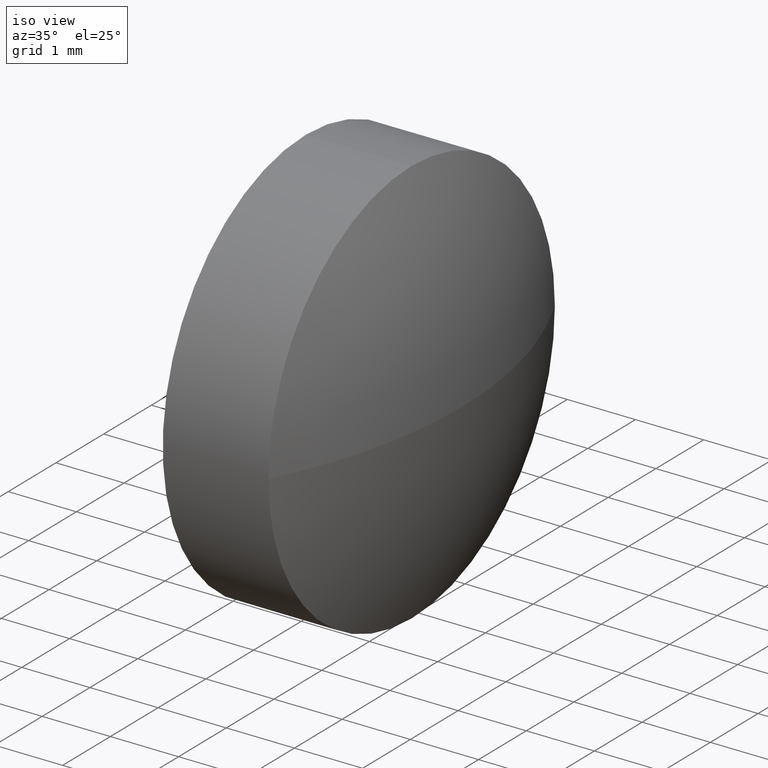
[diagram: clean part render]
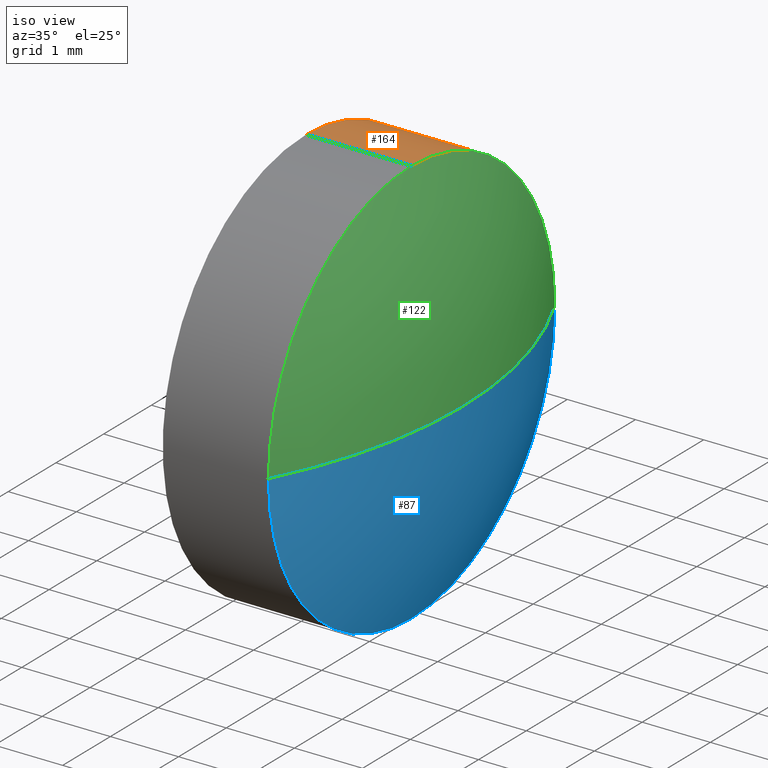
[diagram: same view with three faces highlighted in distinct colors, each labeled with its STEP entity id]
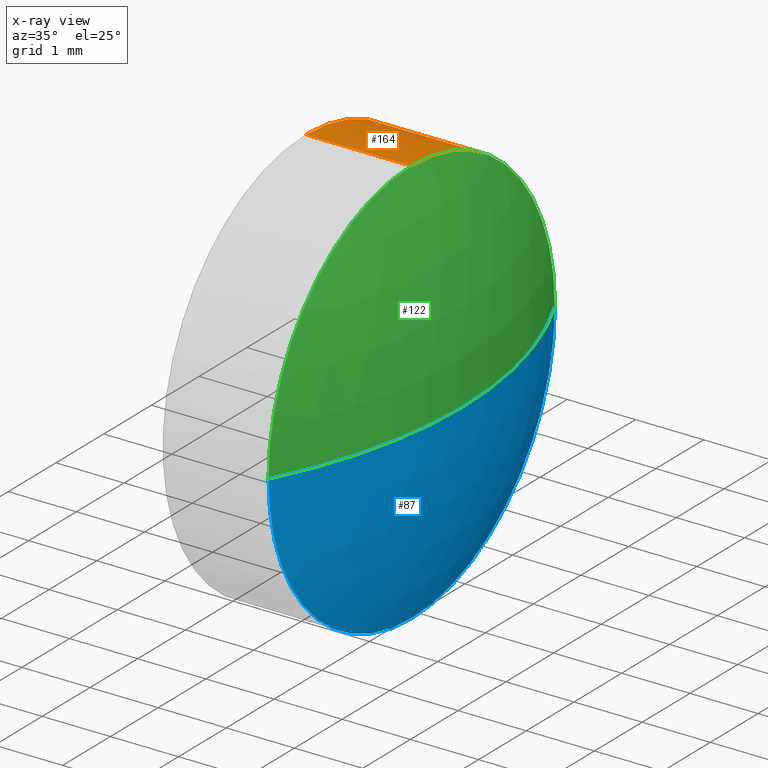
[diagram: x-ray of the same camera — body ghosted, the three highlighted faces saturated]
A machine part, iso view with three faces highlighted in distinct colors.
The next image is the same camera in x-ray (body ghosted, the three faces saturated) — at least one of them is partly hidden behind the body in this view.
Their STEP definitions:

[orange] entity #164 — the highlighted cylindrical surface (partial cylindrical patch) has radius 3 mm, axis along (-1, -0, -0).
#1 = EDGE_LOOP ( 'NONE', ( #119, #137, #207, #155, #187 ) ) ;
#6 = EDGE_CURVE ( 'NONE', #107, #170, #134, .T. ) ;
#10 = CARTESIAN_POINT ( 'NONE',  ( 2.652301464341483950, 0.5942976565702010605, -3.000000000000000000 ) ) ;
#23 = CYLINDRICAL_SURFACE ( 'NONE', #52, 3.000000000000000000 ) ;
#24 = CARTESIAN_POINT ( 'NONE',  ( 4.202301464341483772, 0.5942976565702007274, 0.000000000000000000 ) ) ;
#30 = EDGE_CURVE ( 'NONE', #210, #157, #146, .T. ) ;
#34 = AXIS2_PLACEMENT_3D ( 'NONE', #24, #80, #145 ) ;
#40 = CARTESIAN_POINT ( 'NONE',  ( 2.652301464341484394, 0.5942976565702007274, 3.000000000000000000 ) ) ;
#41 = CARTESIAN_POINT ( 'NONE',  ( 4.202301464341483772, 3.594297656570200949, 0.000000000000000000 ) ) ;
#45 = DIRECTION ( 'NONE',  ( -1.000000000000000000, -0.000000000000000000, -0.000000000000000000 ) ) ;
#48 = DIRECTION ( 'NONE',  ( -1.000000000000000000, -0.000000000000000000, -0.000000000000000000 ) ) ;
#49 = EDGE_CURVE ( 'NONE', #57, #210, #69, .T. ) ;
#52 = AXIS2_PLACEMENT_3D ( 'NONE', #86, #218, #66 ) ;
#57 = VERTEX_POINT ( 'NONE', #163 ) ;
#62 = CARTESIAN_POINT ( 'NONE',  ( 2.652301464341483950, 0.5942976565702007274, 3.000000000000000000 ) ) ;
#66 = DIRECTION ( 'NONE',  ( 0.000000000000000000, 0.000000000000000000, 1.000000000000000000 ) ) ;
#69 = CIRCLE ( 'NONE', #73, 3.000000000000000000 ) ;
#73 = AXIS2_PLACEMENT_3D ( 'NONE', #216, #45, #160 ) ;
#80 = DIRECTION ( 'NONE',  ( -1.000000000000000000, -0.000000000000000000, -0.000000000000000000 ) ) ;
#81 = DIRECTION ( 'NONE',  ( -1.000000000000000000, -0.000000000000000000, -0.000000000000000000 ) ) ;
#86 = CARTESIAN_POINT ( 'NONE',  ( 2.652301464341484394, 0.5942976565702007274, 0.000000000000000000 ) ) ;
#89 = EDGE_CURVE ( 'NONE', #157, #170, #132, .T. ) ;
#93 = DIRECTION ( 'NONE',  ( -1.000000000000000000, -0.000000000000000000, -0.000000000000000000 ) ) ;
#97 = LINE ( 'NONE', #40, #201 ) ;
#107 = VERTEX_POINT ( 'NONE', #62 ) ;
#119 = ORIENTED_EDGE ( 'NONE', *, *, #30, .T. ) ;
#127 = CARTESIAN_POINT ( 'NONE',  ( 2.652301464341484394, 0.5942976565702010605, -3.000000000000000000 ) ) ;
#132 = LINE ( 'NONE', #127, #197 ) ;
#134 = CIRCLE ( 'NONE', #200, 3.000000000000000000 ) ;
#137 = ORIENTED_EDGE ( 'NONE', *, *, #89, .T. ) ;
#145 = DIRECTION ( 'NONE',  ( 0.000000000000000000, 0.000000000000000000, 1.000000000000000000 ) ) ;
#146 = CIRCLE ( 'NONE', #34, 3.000000000000000000 ) ;
#155 = ORIENTED_EDGE ( 'NONE', *, *, #204, .F. ) ;
#157 = VERTEX_POINT ( 'NONE', #219 ) ;
#160 = DIRECTION ( 'NONE',  ( 0.000000000000000000, 0.000000000000000000, 1.000000000000000000 ) ) ;
#163 = CARTESIAN_POINT ( 'NONE',  ( 4.202301464341483772, 0.5942976565702007274, 3.000000000000000000 ) ) ;
#164 = ADVANCED_FACE ( 'NONE', ( #211 ), #23, .T. ) ;
#170 = VERTEX_POINT ( 'NONE', #10 ) ;
#187 = ORIENTED_EDGE ( 'NONE', *, *, #49, .T. ) ;
#197 = VECTOR ( 'NONE', #48, 1000.000000000000000 ) ;
#200 = AXIS2_PLACEMENT_3D ( 'NONE', #215, #81, #213 ) ;
#201 = VECTOR ( 'NONE', #93, 1000.000000000000000 ) ;
#204 = EDGE_CURVE ( 'NONE', #57, #107, #97, .T. ) ;
#207 = ORIENTED_EDGE ( 'NONE', *, *, #6, .F. ) ;
#210 = VERTEX_POINT ( 'NONE', #41 ) ;
#211 = FACE_OUTER_BOUND ( 'NONE', #1, .T. ) ;
#213 = DIRECTION ( 'NONE',  ( 0.000000000000000000, 0.000000000000000000, 1.000000000000000000 ) ) ;
#215 = CARTESIAN_POINT ( 'NONE',  ( 2.652301464341483950, 0.5942976565702007274, 0.000000000000000000 ) ) ;
#216 = CARTESIAN_POINT ( 'NONE',  ( 4.202301464341483772, 0.5942976565702007274, 0.000000000000000000 ) ) ;
#218 = DIRECTION ( 'NONE',  ( -1.000000000000000000, -0.000000000000000000, -0.000000000000000000 ) ) ;
#219 = CARTESIAN_POINT ( 'NONE',  ( 4.202301464341483772, 0.5942976565702010605, -3.000000000000000000 ) ) ;

[blue] entity #87 — the highlighted spherical surface has radius 6.455 mm.
#8 = ORIENTED_EDGE ( 'NONE', *, *, #30, .F. ) ;
#12 = DIRECTION ( 'NONE',  ( 0.000000000000000000, 1.000000000000000000, 1.224646799147353207E-16 ) ) ;
#18 = CIRCLE ( 'NONE', #184, 6.455000000000000959 ) ;
#24 = CARTESIAN_POINT ( 'NONE',  ( 4.202301464341483772, 0.5942976565702007274, 0.000000000000000000 ) ) ;
#30 = EDGE_CURVE ( 'NONE', #210, #157, #146, .T. ) ;
#34 = AXIS2_PLACEMENT_3D ( 'NONE', #24, #80, #145 ) ;
#39 = ORIENTED_EDGE ( 'NONE', *, *, #183, .F. ) ;
#41 = CARTESIAN_POINT ( 'NONE',  ( 4.202301464341483772, 3.594297656570200949, 0.000000000000000000 ) ) ;
#47 = EDGE_LOOP ( 'NONE', ( #125, #205, #39, #8 ) ) ;
#51 = DIRECTION ( 'NONE',  ( 0.000000000000000000, 0.000000000000000000, 1.000000000000000000 ) ) ;
#53 = AXIS2_PLACEMENT_3D ( 'NONE', #141, #61, #198 ) ;
#61 = DIRECTION ( 'NONE',  ( -0.000000000000000000, 0.000000000000000000, -1.000000000000000000 ) ) ;
#64 = CIRCLE ( 'NONE', #95, 3.000000000000000000 ) ;
#71 = EDGE_CURVE ( 'NONE', #96, #138, #18, .T. ) ;
#78 = CARTESIAN_POINT ( 'NONE',  ( 4.941794050296778096, 0.5942976565702011715, 0.000000000000000000 ) ) ;
#80 = DIRECTION ( 'NONE',  ( -1.000000000000000000, -0.000000000000000000, -0.000000000000000000 ) ) ;
#84 = FACE_OUTER_BOUND ( 'NONE', #47, .T. ) ;
#85 = CIRCLE ( 'NONE', #131, 6.455000000000000959 ) ;
#87 = ADVANCED_FACE ( 'NONE', ( #84 ), #116, .T. ) ;
#95 = AXIS2_PLACEMENT_3D ( 'NONE', #126, #109, #51 ) ;
#96 = VERTEX_POINT ( 'NONE', #78 ) ;
#109 = DIRECTION ( 'NONE',  ( -1.000000000000000000, -0.000000000000000000, -0.000000000000000000 ) ) ;
#113 = CARTESIAN_POINT ( 'NONE',  ( -1.513205949703222419, 0.5942976565702007274, 0.000000000000000000 ) ) ;
#116 = SPHERICAL_SURFACE ( 'NONE', #53, 6.455000000000000959 ) ;
#125 = ORIENTED_EDGE ( 'NONE', *, *, #148, .F. ) ;
#126 = CARTESIAN_POINT ( 'NONE',  ( 4.202301464341483772, 0.5942976565702007274, 0.000000000000000000 ) ) ;
#131 = AXIS2_PLACEMENT_3D ( 'NONE', #192, #142, #140 ) ;
#138 = VERTEX_POINT ( 'NONE', #139 ) ;
#139 = CARTESIAN_POINT ( 'NONE',  ( 4.202301464341483772, -2.405702343429799495, -3.673940397442060361E-16 ) ) ;
#140 = DIRECTION ( 'NONE',  ( 1.000000000000000000, 0.000000000000000000, 0.000000000000000000 ) ) ;
#141 = CARTESIAN_POINT ( 'NONE',  ( -1.513205949703222419, 0.5942976565702007274, 0.000000000000000000 ) ) ;
#142 = DIRECTION ( 'NONE',  ( -0.000000000000000000, 0.000000000000000000, 1.000000000000000000 ) ) ;
#145 = DIRECTION ( 'NONE',  ( 0.000000000000000000, 0.000000000000000000, 1.000000000000000000 ) ) ;
#146 = CIRCLE ( 'NONE', #34, 3.000000000000000000 ) ;
#148 = EDGE_CURVE ( 'NONE', #96, #210, #85, .T. ) ;
#157 = VERTEX_POINT ( 'NONE', #219 ) ;
#176 = DIRECTION ( 'NONE',  ( 0.000000000000000000, 1.224646799147353207E-16, -1.000000000000000000 ) ) ;
#183 = EDGE_CURVE ( 'NONE', #157, #138, #64, .T. ) ;
#184 = AXIS2_PLACEMENT_3D ( 'NONE', #113, #176, #12 ) ;
#192 = CARTESIAN_POINT ( 'NONE',  ( -1.513205949703222419, 0.5942976565702007274, 0.000000000000000000 ) ) ;
#198 = DIRECTION ( 'NONE',  ( 0.000000000000000000, 1.000000000000000000, 0.000000000000000000 ) ) ;
#205 = ORIENTED_EDGE ( 'NONE', *, *, #71, .T. ) ;
#210 = VERTEX_POINT ( 'NONE', #41 ) ;
#219 = CARTESIAN_POINT ( 'NONE',  ( 4.202301464341483772, 0.5942976565702010605, -3.000000000000000000 ) ) ;

[green] entity #122 — the highlighted spherical surface has radius 6.455 mm.
#5 = SPHERICAL_SURFACE ( 'NONE', #25, 6.455000000000000959 ) ;
#12 = DIRECTION ( 'NONE',  ( 0.000000000000000000, 1.000000000000000000, 1.224646799147353207E-16 ) ) ;
#15 = CIRCLE ( 'NONE', #150, 3.000000000000000000 ) ;
#18 = CIRCLE ( 'NONE', #184, 6.455000000000000959 ) ;
#20 = EDGE_LOOP ( 'NONE', ( #77, #37, #156, #167 ) ) ;
#25 = AXIS2_PLACEMENT_3D ( 'NONE', #123, #161, #199 ) ;
#26 = EDGE_CURVE ( 'NONE', #138, #57, #15, .T. ) ;
#28 = DIRECTION ( 'NONE',  ( -1.000000000000000000, -0.000000000000000000, -0.000000000000000000 ) ) ;
#37 = ORIENTED_EDGE ( 'NONE', *, *, #148, .T. ) ;
#41 = CARTESIAN_POINT ( 'NONE',  ( 4.202301464341483772, 3.594297656570200949, 0.000000000000000000 ) ) ;
#45 = DIRECTION ( 'NONE',  ( -1.000000000000000000, -0.000000000000000000, -0.000000000000000000 ) ) ;
#49 = EDGE_CURVE ( 'NONE', #57, #210, #69, .T. ) ;
#57 = VERTEX_POINT ( 'NONE', #163 ) ;
#69 = CIRCLE ( 'NONE', #73, 3.000000000000000000 ) ;
#71 = EDGE_CURVE ( 'NONE', #96, #138, #18, .T. ) ;
#73 = AXIS2_PLACEMENT_3D ( 'NONE', #216, #45, #160 ) ;
#77 = ORIENTED_EDGE ( 'NONE', *, *, #71, .F. ) ;
#78 = CARTESIAN_POINT ( 'NONE',  ( 4.941794050296778096, 0.5942976565702011715, 0.000000000000000000 ) ) ;
#85 = CIRCLE ( 'NONE', #131, 6.455000000000000959 ) ;
#96 = VERTEX_POINT ( 'NONE', #78 ) ;
#99 = DIRECTION ( 'NONE',  ( 0.000000000000000000, 0.000000000000000000, 1.000000000000000000 ) ) ;
#113 = CARTESIAN_POINT ( 'NONE',  ( -1.513205949703222419, 0.5942976565702007274, 0.000000000000000000 ) ) ;
#122 = ADVANCED_FACE ( 'NONE', ( #172 ), #5, .T. ) ;
#123 = CARTESIAN_POINT ( 'NONE',  ( -1.513205949703222419, 0.5942976565702007274, 0.000000000000000000 ) ) ;
#131 = AXIS2_PLACEMENT_3D ( 'NONE', #192, #142, #140 ) ;
#138 = VERTEX_POINT ( 'NONE', #139 ) ;
#139 = CARTESIAN_POINT ( 'NONE',  ( 4.202301464341483772, -2.405702343429799495, -3.673940397442060361E-16 ) ) ;
#140 = DIRECTION ( 'NONE',  ( 1.000000000000000000, 0.000000000000000000, 0.000000000000000000 ) ) ;
#142 = DIRECTION ( 'NONE',  ( -0.000000000000000000, 0.000000000000000000, 1.000000000000000000 ) ) ;
#143 = CARTESIAN_POINT ( 'NONE',  ( 4.202301464341483772, 0.5942976565702007274, 0.000000000000000000 ) ) ;
#148 = EDGE_CURVE ( 'NONE', #96, #210, #85, .T. ) ;
#150 = AXIS2_PLACEMENT_3D ( 'NONE', #143, #28, #99 ) ;
#156 = ORIENTED_EDGE ( 'NONE', *, *, #49, .F. ) ;
#160 = DIRECTION ( 'NONE',  ( 0.000000000000000000, 0.000000000000000000, 1.000000000000000000 ) ) ;
#161 = DIRECTION ( 'NONE',  ( -0.000000000000000000, 0.000000000000000000, -1.000000000000000000 ) ) ;
#163 = CARTESIAN_POINT ( 'NONE',  ( 4.202301464341483772, 0.5942976565702007274, 3.000000000000000000 ) ) ;
#167 = ORIENTED_EDGE ( 'NONE', *, *, #26, .F. ) ;
#172 = FACE_OUTER_BOUND ( 'NONE', #20, .T. ) ;
#176 = DIRECTION ( 'NONE',  ( 0.000000000000000000, 1.224646799147353207E-16, -1.000000000000000000 ) ) ;
#184 = AXIS2_PLACEMENT_3D ( 'NONE', #113, #176, #12 ) ;
#192 = CARTESIAN_POINT ( 'NONE',  ( -1.513205949703222419, 0.5942976565702007274, 0.000000000000000000 ) ) ;
#199 = DIRECTION ( 'NONE',  ( 0.000000000000000000, 1.000000000000000000, 0.000000000000000000 ) ) ;
#210 = VERTEX_POINT ( 'NONE', #41 ) ;
#216 = CARTESIAN_POINT ( 'NONE',  ( 4.202301464341483772, 0.5942976565702007274, 0.000000000000000000 ) ) ;